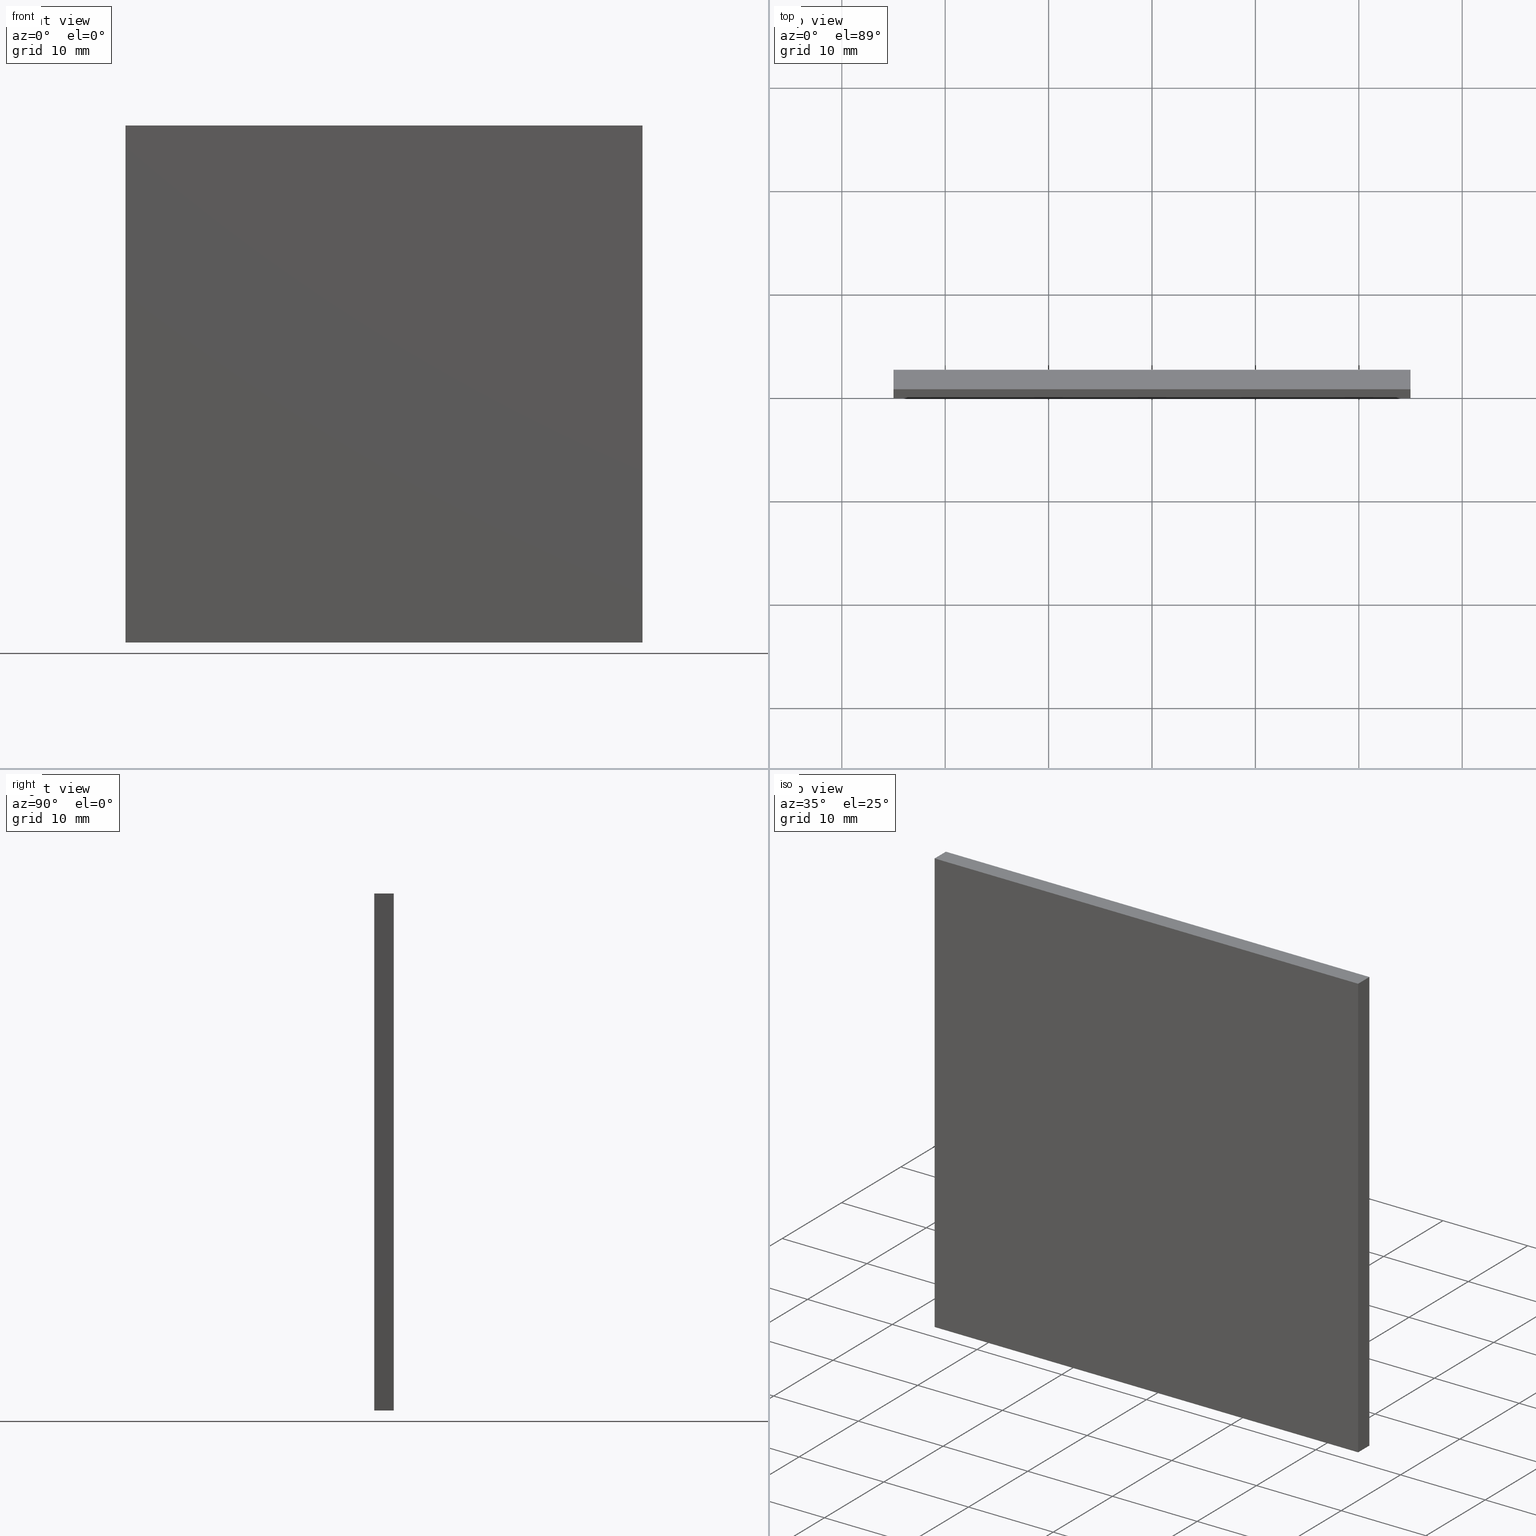
[diagram: canonical four-view strip — front | top / right | iso, engineering-drawing reading convention]
A machine part, canonical four-view strip (front | top / right | iso — engineering-drawing reading convention). The complete STEP part file that produces these views, byte-faithful:
ISO-10303-21;
HEADER;
FILE_DESCRIPTION (( 'STEP AP214' ),
    '1' );
FILE_NAME ('248620.STEP',
    '2019-08-06T06:52:54',
    ( 'user' ),
    ( '΢���й�' ),
    'SwSTEP 2.0',
    'SolidWorks 2016',
    '' );
FILE_SCHEMA (( 'AUTOMOTIVE_DESIGN' ));
ENDSEC;

DATA;
#1 = DIRECTION ( 'NONE',  ( 1.000000000000000000, 0.0000000000000000000, 0.0000000000000000000 ) ) ;
#2 = PRODUCT_DEFINITION_CONTEXT ( 'detailed design', #54, 'design' ) ;
#3 = ORIENTED_EDGE ( 'NONE', *, *, #164, .T. ) ;
#4 = DIRECTION ( 'NONE',  ( -0.0000000000000000000, -1.000000000000000000, -0.0000000000000000000 ) ) ;
#5 = VECTOR ( 'NONE', #22, 1000.000000000000000 ) ;
#6 = ORIENTED_EDGE ( 'NONE', *, *, #140, .F. ) ;
#7 = EDGE_LOOP ( 'NONE', ( #43, #6, #185, #166 ) ) ;
#8 = COLOUR_RGB ( '',1.000000000000000000, 1.000000000000000000, 1.000000000000000000 ) ;
#9 = FACE_OUTER_BOUND ( 'NONE', #12, .T. ) ;
#10 = VECTOR ( 'NONE', #162, 1000.000000000000000 ) ;
#11 =( GEOMETRIC_REPRESENTATION_CONTEXT ( 3 ) GLOBAL_UNCERTAINTY_ASSIGNED_CONTEXT ( ( #196 ) ) GLOBAL_UNIT_ASSIGNED_CONTEXT ( ( #17, #80, #66 ) ) REPRESENTATION_CONTEXT ( 'NONE', 'WORKASPACE' ) );
#12 = EDGE_LOOP ( 'NONE', ( #81, #47, #60, #3 ) ) ;
#13 = UNCERTAINTY_MEASURE_WITH_UNIT (LENGTH_MEASURE( 1.000000000000000100E-005 ), #101, 'distance_accuracy_value', 'NONE');
#14 = DIRECTION ( 'NONE',  ( 0.0000000000000000000, -0.0000000000000000000, -1.000000000000000000 ) ) ;
#15 = EDGE_CURVE ( 'NONE', #200, #183, #169, .T. ) ;
#16 = ADVANCED_FACE ( 'NONE', ( #53 ), #21, .F. ) ;
#17 =( LENGTH_UNIT ( ) NAMED_UNIT ( * ) SI_UNIT ( .MILLI., .METRE. ) );
#18 = AXIS2_PLACEMENT_3D ( 'NONE', #193, #130, #143 ) ;
#19 = ADVANCED_FACE ( 'NONE', ( #59 ), #68, .F. ) ;
#20 = EDGE_LOOP ( 'NONE', ( #159, #173, #115, #122 ) ) ;
#21 = PLANE ( 'NONE',  #144 ) ;
#22 = DIRECTION ( 'NONE',  ( -0.0000000000000000000, -1.000000000000000000, -0.0000000000000000000 ) ) ;
#23 = DIRECTION ( 'NONE',  ( 0.0000000000000000000, 0.0000000000000000000, 1.000000000000000000 ) ) ;
#24 = DIRECTION ( 'NONE',  ( 0.0000000000000000000, 0.0000000000000000000, -1.000000000000000000 ) ) ;
#25 = CARTESIAN_POINT ( 'NONE',  ( 0.0000000000000000000, 0.0000000000000000000, 0.0000000000000000000 ) ) ;
#26 = ORIENTED_EDGE ( 'NONE', *, *, #176, .T. ) ;
#27 = CARTESIAN_POINT ( 'NONE',  ( -25.00000000000000000, 0.0000000000000000000, -25.00000000000000400 ) ) ;
#28 = FILL_AREA_STYLE_COLOUR ( '', #100 ) ;
#29 = VECTOR ( 'NONE', #24, 1000.000000000000000 ) ;
#30 = EDGE_LOOP ( 'NONE', ( #192, #146, #34, #177 ) ) ;
#31 = VERTEX_POINT ( 'NONE', #188 ) ;
#32 =( NAMED_UNIT ( * ) PLANE_ANGLE_UNIT ( ) SI_UNIT ( $, .RADIAN. ) );
#33 = CARTESIAN_POINT ( 'NONE',  ( 25.00000000000000000, 1.889999999999999900, 24.99999999999999600 ) ) ;
#34 = ORIENTED_EDGE ( 'NONE', *, *, #141, .T. ) ;
#35 = CARTESIAN_POINT ( 'NONE',  ( 25.00000000000000000, 1.889999999999999900, 24.99999999999999600 ) ) ;
#36 = SURFACE_STYLE_USAGE ( .BOTH. , #56 ) ;
#37 = DIRECTION ( 'NONE',  ( 0.0000000000000000000, 0.0000000000000000000, -1.000000000000000000 ) ) ;
#38 = PRODUCT_CONTEXT ( 'NONE', #44, 'mechanical' ) ;
#39 = EDGE_CURVE ( 'NONE', #183, #131, #137, .T. ) ;
#40 = DIRECTION ( 'NONE',  ( 1.000000000000000000, 0.0000000000000000000, 0.0000000000000000000 ) ) ;
#41 =( GEOMETRIC_REPRESENTATION_CONTEXT ( 3 ) GLOBAL_UNCERTAINTY_ASSIGNED_CONTEXT ( ( #13 ) ) GLOBAL_UNIT_ASSIGNED_CONTEXT ( ( #101, #32, #73 ) ) REPRESENTATION_CONTEXT ( 'NONE', 'WORKASPACE' ) );
#42 = LINE ( 'NONE', #132, #142 ) ;
#43 = ORIENTED_EDGE ( 'NONE', *, *, #52, .F. ) ;
#44 = APPLICATION_CONTEXT ( 'automotive_design' ) ;
#45 = SURFACE_STYLE_FILL_AREA ( #111 ) ;
#46 = AXIS2_PLACEMENT_3D ( 'NONE', #25, #23, #40 ) ;
#47 = ORIENTED_EDGE ( 'NONE', *, *, #99, .F. ) ;
#48 = LINE ( 'NONE', #55, #51 ) ;
#49 = EDGE_LOOP ( 'NONE', ( #76, #116, #113, #26 ) ) ;
#50 = DIRECTION ( 'NONE',  ( 0.0000000000000000000, 0.0000000000000000000, -1.000000000000000000 ) ) ;
#51 = VECTOR ( 'NONE', #50, 1000.000000000000000 ) ;
#52 = EDGE_CURVE ( 'NONE', #131, #104, #48, .T. ) ;
#53 = FACE_OUTER_BOUND ( 'NONE', #20, .T. ) ;
#54 = APPLICATION_CONTEXT ( 'automotive_design' ) ;
#55 = CARTESIAN_POINT ( 'NONE',  ( 25.00000000000000000, 0.0000000000000000000, 24.99999999999999600 ) ) ;
#56 = SURFACE_SIDE_STYLE ('',( #45 ) ) ;
#57 = LINE ( 'NONE', #119, #186 ) ;
#58 =( GEOMETRIC_REPRESENTATION_CONTEXT ( 3 ) GLOBAL_UNCERTAINTY_ASSIGNED_CONTEXT ( ( #171 ) ) GLOBAL_UNIT_ASSIGNED_CONTEXT ( ( #153, #174, #181 ) ) REPRESENTATION_CONTEXT ( 'NONE', 'WORKASPACE' ) );
#59 = FACE_OUTER_BOUND ( 'NONE', #49, .T. ) ;
#60 = ORIENTED_EDGE ( 'NONE', *, *, #141, .F. ) ;
#61 = VECTOR ( 'NONE', #117, 1000.000000000000000 ) ;
#62 = CARTESIAN_POINT ( 'NONE',  ( -25.00000000000000000, 0.0000000000000000000, 24.99999999999999600 ) ) ;
#63 = VECTOR ( 'NONE', #103, 1000.000000000000000 ) ;
#64 = VERTEX_POINT ( 'NONE', #69 ) ;
#65 = DIRECTION ( 'NONE',  ( -1.000000000000000000, 0.0000000000000000000, -0.0000000000000000000 ) ) ;
#66 =( NAMED_UNIT ( * ) SI_UNIT ( $, .STERADIAN. ) SOLID_ANGLE_UNIT ( ) );
#67 = DIRECTION ( 'NONE',  ( -0.0000000000000000000, -0.0000000000000000000, 1.000000000000000000 ) ) ;
#68 = PLANE ( 'NONE',  #70 ) ;
#69 = CARTESIAN_POINT ( 'NONE',  ( -25.00000000000000000, 1.889999999999999900, -25.00000000000000400 ) ) ;
#70 = AXIS2_PLACEMENT_3D ( 'NONE', #93, #78, #98 ) ;
#71 = VERTEX_POINT ( 'NONE', #102 ) ;
#72 = CARTESIAN_POINT ( 'NONE',  ( -25.00000000000000000, 1.889999999999999900, -25.00000000000000400 ) ) ;
#73 =( NAMED_UNIT ( * ) SI_UNIT ( $, .STERADIAN. ) SOLID_ANGLE_UNIT ( ) );
#74 = MANIFOLD_SOLID_BREP ( '͹̨-����1', #90 ) ;
#75 = STYLED_ITEM ( 'NONE', ( #191 ), #95 ) ;
#76 = ORIENTED_EDGE ( 'NONE', *, *, #152, .T. ) ;
#77 = PLANE ( 'NONE',  #18 ) ;
#78 = DIRECTION ( 'NONE',  ( 0.0000000000000000000, 0.0000000000000000000, 1.000000000000000000 ) ) ;
#79 = PRESENTATION_LAYER_ASSIGNMENT (  '', '', ( #179 ) ) ;
#80 =( NAMED_UNIT ( * ) PLANE_ANGLE_UNIT ( ) SI_UNIT ( $, .RADIAN. ) );
#81 = ORIENTED_EDGE ( 'NONE', *, *, #167, .T. ) ;
#82 = ADVANCED_FACE ( 'NONE', ( #175 ), #86, .F. ) ;
#83 = CARTESIAN_POINT ( 'NONE',  ( -25.00000000000000000, 1.889999999999999900, 24.99999999999999600 ) ) ;
#84 = FILL_AREA_STYLE_COLOUR ( '', #8 ) ;
#85 = FACE_OUTER_BOUND ( 'NONE', #7, .T. ) ;
#86 = PLANE ( 'NONE',  #110 ) ;
#87 = FILL_AREA_STYLE ('',( #84 ) ) ;
#88 = FACE_OUTER_BOUND ( 'NONE', #112, .T. ) ;
#89 = SURFACE_SIDE_STYLE ('',( #198 ) ) ;
#90 = CLOSED_SHELL ( 'NONE', ( #165, #19, #145, #16, #82, #147 ) ) ;
#91 = CARTESIAN_POINT ( 'NONE',  ( -25.00000000000000000, 1.889999999999999900, 24.99999999999999600 ) ) ;
#92 = SURFACE_STYLE_USAGE ( .BOTH. , #89 ) ;
#93 = CARTESIAN_POINT ( 'NONE',  ( -25.00000000000000000, 1.889999999999999900, -25.00000000000000400 ) ) ;
#94 = MECHANICAL_DESIGN_GEOMETRIC_PRESENTATION_REPRESENTATION (  '', ( #75 ), #58 ) ;
#95 = ADVANCED_BREP_SHAPE_REPRESENTATION ( '248620', ( #74, #46 ), #11 ) ;
#96 = PRESENTATION_STYLE_ASSIGNMENT (( #92 ) ) ;
#97 = LINE ( 'NONE', #189, #139 ) ;
#98 = DIRECTION ( 'NONE',  ( 1.000000000000000000, 0.0000000000000000000, -0.0000000000000000000 ) ) ;
#99 = EDGE_CURVE ( 'NONE', #200, #31, #97, .T. ) ;
#100 = COLOUR_RGB ( '',1.000000000000000000, 1.000000000000000000, 1.000000000000000000 ) ;
#101 =( LENGTH_UNIT ( ) NAMED_UNIT ( * ) SI_UNIT ( .MILLI., .METRE. ) );
#102 = CARTESIAN_POINT ( 'NONE',  ( -25.00000000000000000, 0.0000000000000000000, -25.00000000000000400 ) ) ;
#103 = DIRECTION ( 'NONE',  ( -1.000000000000000000, -0.0000000000000000000, -0.0000000000000000000 ) ) ;
#104 = VERTEX_POINT ( 'NONE', #133 ) ;
#105 = CARTESIAN_POINT ( 'NONE',  ( -25.00000000000000000, 1.889999999999999900, 24.99999999999999600 ) ) ;
#106 = LINE ( 'NONE', #72, #10 ) ;
#107 = APPLICATION_PROTOCOL_DEFINITION ( 'draft international standard', 'automotive_design', 1998, #44 ) ;
#108 = CARTESIAN_POINT ( 'NONE',  ( 0.0000000000000000000, 0.0000000000000000000, 0.0000000000000000000 ) ) ;
#109 = PLANE ( 'NONE',  #149 ) ;
#110 = AXIS2_PLACEMENT_3D ( 'NONE', #135, #178, #120 ) ;
#111 = FILL_AREA_STYLE ('',( #28 ) ) ;
#112 = EDGE_LOOP ( 'NONE', ( #126, #154, #197, #114 ) ) ;
#113 = ORIENTED_EDGE ( 'NONE', *, *, #123, .F. ) ;
#114 = ORIENTED_EDGE ( 'NONE', *, *, #39, .T. ) ;
#115 = ORIENTED_EDGE ( 'NONE', *, *, #15, .F. ) ;
#116 = ORIENTED_EDGE ( 'NONE', *, *, #164, .F. ) ;
#117 = DIRECTION ( 'NONE',  ( -0.0000000000000000000, -0.0000000000000000000, 1.000000000000000000 ) ) ;
#118 = DIRECTION ( 'NONE',  ( 0.0000000000000000000, 0.0000000000000000000, 1.000000000000000000 ) ) ;
#119 = CARTESIAN_POINT ( 'NONE',  ( -25.00000000000000000, 0.0000000000000000000, 24.99999999999999600 ) ) ;
#120 = DIRECTION ( 'NONE',  ( 0.0000000000000000000, -0.0000000000000000000, -1.000000000000000000 ) ) ;
#121 = LINE ( 'NONE', #27, #63 ) ;
#122 = ORIENTED_EDGE ( 'NONE', *, *, #99, .T. ) ;
#123 = EDGE_CURVE ( 'NONE', #134, #64, #106, .T. ) ;
#124 = CARTESIAN_POINT ( 'NONE',  ( 25.00000000000000000, 1.889999999999999900, 24.99999999999999600 ) ) ;
#125 = VECTOR ( 'NONE', #150, 1000.000000000000000 ) ;
#126 = ORIENTED_EDGE ( 'NONE', *, *, #52, .T. ) ;
#127 = MECHANICAL_DESIGN_GEOMETRIC_PRESENTATION_REPRESENTATION (  '', ( #179 ), #41 ) ;
#128 = APPLICATION_PROTOCOL_DEFINITION ( 'draft international standard', 'automotive_design', 1998, #54 ) ;
#129 = SHAPE_DEFINITION_REPRESENTATION ( #160, #95 ) ;
#130 = DIRECTION ( 'NONE',  ( 1.000000000000000000, -0.0000000000000000000, 0.0000000000000000000 ) ) ;
#131 = VERTEX_POINT ( 'NONE', #155 ) ;
#132 = CARTESIAN_POINT ( 'NONE',  ( -25.00000000000000000, 1.889999999999999900, -25.00000000000000400 ) ) ;
#133 = CARTESIAN_POINT ( 'NONE',  ( 25.00000000000000000, 0.0000000000000000000, -25.00000000000000400 ) ) ;
#134 = VERTEX_POINT ( 'NONE', #151 ) ;
#135 = CARTESIAN_POINT ( 'NONE',  ( 0.0000000000000000000, 1.889999999999999900, 0.0000000000000000000 ) ) ;
#136 = LINE ( 'NONE', #35, #29 ) ;
#137 = LINE ( 'NONE', #124, #5 ) ;
#138 = AXIS2_PLACEMENT_3D ( 'NONE', #202, #168, #118 ) ;
#139 = VECTOR ( 'NONE', #180, 1000.000000000000000 ) ;
#140 = EDGE_CURVE ( 'NONE', #31, #131, #57, .T. ) ;
#141 = EDGE_CURVE ( 'NONE', #64, #200, #184, .T. ) ;
#142 = VECTOR ( 'NONE', #4, 1000.000000000000000 ) ;
#143 = DIRECTION ( 'NONE',  ( 0.0000000000000000000, 0.0000000000000000000, -1.000000000000000000 ) ) ;
#144 = AXIS2_PLACEMENT_3D ( 'NONE', #105, #37, #65 ) ;
#145 = ADVANCED_FACE ( 'NONE', ( #9 ), #77, .F. ) ;
#146 = ORIENTED_EDGE ( 'NONE', *, *, #123, .T. ) ;
#147 = ADVANCED_FACE ( 'NONE', ( #85 ), #109, .T. ) ;
#148 = CARTESIAN_POINT ( 'NONE',  ( -25.00000000000000000, 1.889999999999999900, 24.99999999999999600 ) ) ;
#149 = AXIS2_PLACEMENT_3D ( 'NONE', #108, #170, #14 ) ;
#150 = DIRECTION ( 'NONE',  ( 1.000000000000000000, 0.0000000000000000000, 0.0000000000000000000 ) ) ;
#151 = CARTESIAN_POINT ( 'NONE',  ( 25.00000000000000000, 1.889999999999999900, -25.00000000000000400 ) ) ;
#152 = EDGE_CURVE ( 'NONE', #104, #71, #121, .T. ) ;
#153 =( LENGTH_UNIT ( ) NAMED_UNIT ( * ) SI_UNIT ( .MILLI., .METRE. ) );
#154 = ORIENTED_EDGE ( 'NONE', *, *, #176, .F. ) ;
#155 = CARTESIAN_POINT ( 'NONE',  ( 25.00000000000000000, 0.0000000000000000000, 24.99999999999999600 ) ) ;
#156 = LINE ( 'NONE', #62, #161 ) ;
#157 = PRODUCT ( '248620', '248620', '', ( #38 ) ) ;
#158 = PRODUCT_DEFINITION_FORMATION_WITH_SPECIFIED_SOURCE ( '�κ�', '', #157, .NOT_KNOWN. ) ;
#159 = ORIENTED_EDGE ( 'NONE', *, *, #140, .T. ) ;
#160 = PRODUCT_DEFINITION_SHAPE ( 'NONE', 'NONE',  #199 ) ;
#161 = VECTOR ( 'NONE', #67, 1000.000000000000000 ) ;
#162 = DIRECTION ( 'NONE',  ( -1.000000000000000000, -0.0000000000000000000, -0.0000000000000000000 ) ) ;
#163 = DIRECTION ( 'NONE',  ( -0.0000000000000000000, -1.000000000000000000, -0.0000000000000000000 ) ) ;
#164 = EDGE_CURVE ( 'NONE', #64, #71, #42, .T. ) ;
#165 = ADVANCED_FACE ( 'NONE', ( #88 ), #201, .F. ) ;
#166 = ORIENTED_EDGE ( 'NONE', *, *, #152, .F. ) ;
#167 = EDGE_CURVE ( 'NONE', #71, #31, #156, .T. ) ;
#168 = DIRECTION ( 'NONE',  ( -1.000000000000000000, 0.0000000000000000000, 0.0000000000000000000 ) ) ;
#169 = LINE ( 'NONE', #148, #125 ) ;
#170 = DIRECTION ( 'NONE',  ( 0.0000000000000000000, -1.000000000000000000, 0.0000000000000000000 ) ) ;
#171 = UNCERTAINTY_MEASURE_WITH_UNIT (LENGTH_MEASURE( 1.000000000000000100E-005 ), #153, 'distance_accuracy_value', 'NONE');
#172 = PRODUCT_RELATED_PRODUCT_CATEGORY ( 'part', '', ( #157 ) ) ;
#173 = ORIENTED_EDGE ( 'NONE', *, *, #39, .F. ) ;
#174 =( NAMED_UNIT ( * ) PLANE_ANGLE_UNIT ( ) SI_UNIT ( $, .RADIAN. ) );
#175 = FACE_OUTER_BOUND ( 'NONE', #30, .T. ) ;
#176 = EDGE_CURVE ( 'NONE', #134, #104, #187, .T. ) ;
#177 = ORIENTED_EDGE ( 'NONE', *, *, #15, .T. ) ;
#178 = DIRECTION ( 'NONE',  ( 0.0000000000000000000, -1.000000000000000000, 0.0000000000000000000 ) ) ;
#179 = STYLED_ITEM ( 'NONE', ( #96 ), #74 ) ;
#180 = DIRECTION ( 'NONE',  ( -0.0000000000000000000, -1.000000000000000000, -0.0000000000000000000 ) ) ;
#181 =( NAMED_UNIT ( * ) SI_UNIT ( $, .STERADIAN. ) SOLID_ANGLE_UNIT ( ) );
#182 = PRESENTATION_LAYER_ASSIGNMENT (  '', '', ( #75 ) ) ;
#183 = VERTEX_POINT ( 'NONE', #33 ) ;
#184 = LINE ( 'NONE', #91, #61 ) ;
#185 = ORIENTED_EDGE ( 'NONE', *, *, #167, .F. ) ;
#186 = VECTOR ( 'NONE', #1, 1000.000000000000000 ) ;
#187 = LINE ( 'NONE', #190, #194 ) ;
#188 = CARTESIAN_POINT ( 'NONE',  ( -25.00000000000000000, 0.0000000000000000000, 24.99999999999999600 ) ) ;
#189 = CARTESIAN_POINT ( 'NONE',  ( -25.00000000000000000, 1.889999999999999900, 24.99999999999999600 ) ) ;
#190 = CARTESIAN_POINT ( 'NONE',  ( 25.00000000000000000, 1.889999999999999900, -25.00000000000000400 ) ) ;
#191 = PRESENTATION_STYLE_ASSIGNMENT (( #36 ) ) ;
#192 = ORIENTED_EDGE ( 'NONE', *, *, #195, .T. ) ;
#193 = CARTESIAN_POINT ( 'NONE',  ( -25.00000000000000000, 1.889999999999999900, 24.99999999999999600 ) ) ;
#194 = VECTOR ( 'NONE', #163, 1000.000000000000000 ) ;
#195 = EDGE_CURVE ( 'NONE', #183, #134, #136, .T. ) ;
#196 = UNCERTAINTY_MEASURE_WITH_UNIT (LENGTH_MEASURE( 1.000000000000000100E-005 ), #17, 'distance_accuracy_value', 'NONE');
#197 = ORIENTED_EDGE ( 'NONE', *, *, #195, .F. ) ;
#198 = SURFACE_STYLE_FILL_AREA ( #87 ) ;
#199 = PRODUCT_DEFINITION ( 'δ֪', '', #158, #2 ) ;
#200 = VERTEX_POINT ( 'NONE', #83 ) ;
#201 = PLANE ( 'NONE',  #138 ) ;
#202 = CARTESIAN_POINT ( 'NONE',  ( 25.00000000000000000, 1.889999999999999900, 24.99999999999999600 ) ) ;
ENDSEC;
END-ISO-10303-21;
